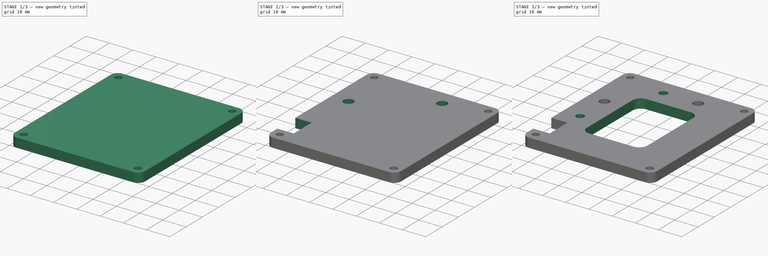
[diagram: build sequence overview — one tinted view per stage of 3, left to right]
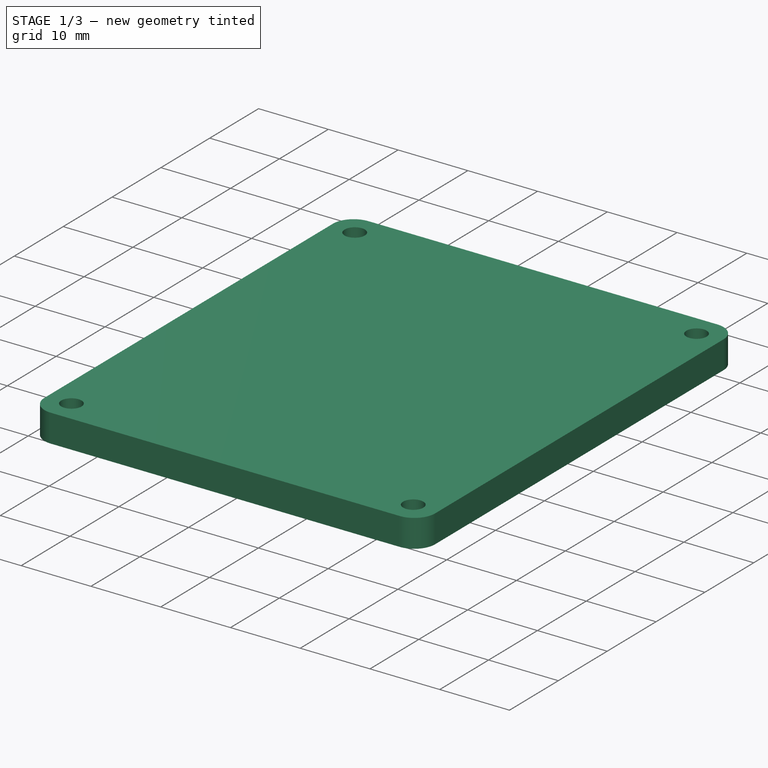
[diagram: stage 1 of 3 — iso view after this stage's code; geometry added in this stage tinted green]
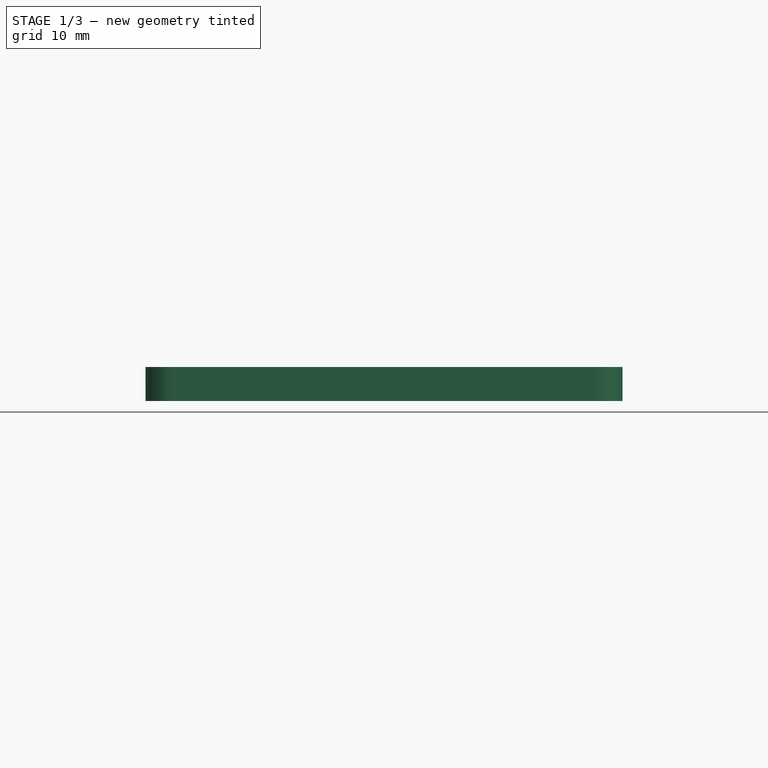
[diagram: stage 1 of 3 — front view after this stage's code; geometry added in this stage tinted green]
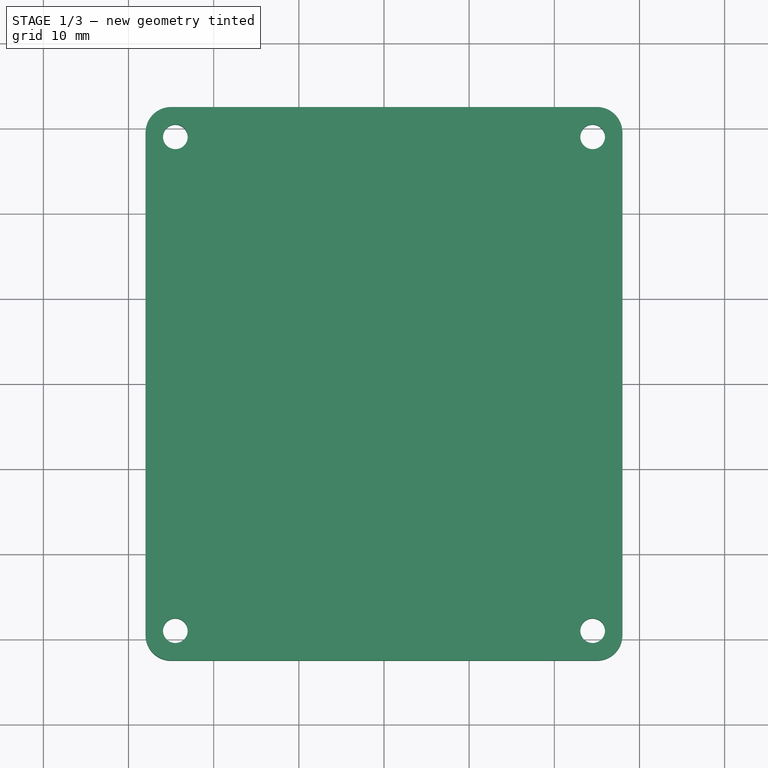
[diagram: stage 1 of 3 — top view after this stage's code; geometry added in this stage tinted green]
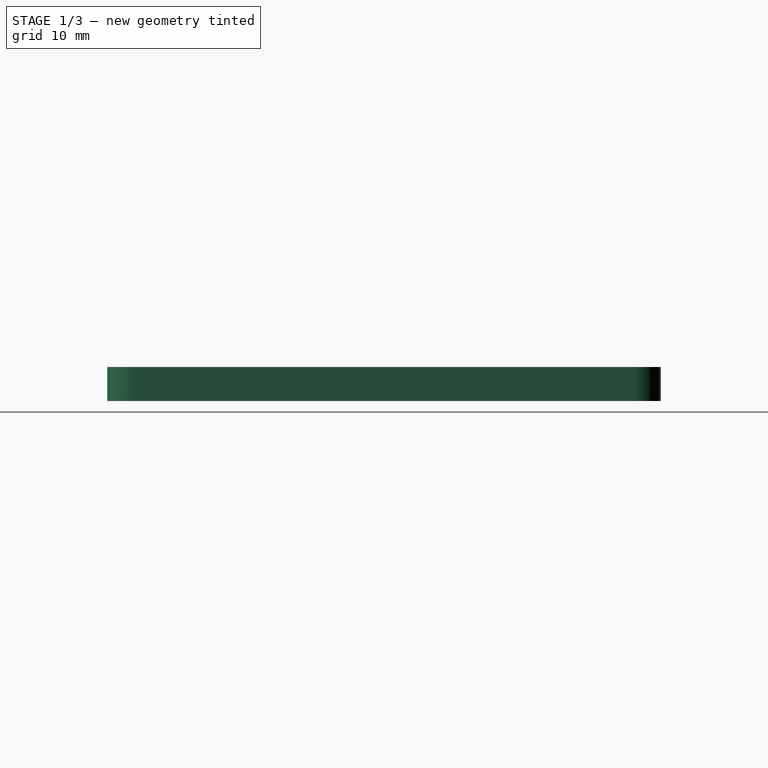
[diagram: stage 1 of 3 — right view after this stage's code; geometry added in this stage tinted green]
FCSTD DOCUMENT  (FreeCAD 0.19R)
Label: Hat_holder
License: All rights reserved
LicenseURL: http://en.wikipedia.org/wiki/All_rights_reserved
objects: Sketcher::SketchObject×6, PartDesign::Pocket×3, PartDesign::Hole×2, PartDesign::Pad×1, PartDesign::Body×1
note: 19 computed .brp shape members not serialized (recipe doc carries the construction recipe); baked Part::Feature solids carry a one-line shape summary decoded from their .brp

FEATURE [Sketcher::SketchObject] Sketch  label="base_sketch"
  FullyConstrained = true
  MapMode = 5
  Support = -> [XY_Plane]
  sketch-geometry (12):
    g0: LineSegment StartX=-25 StartY=-32.5 StartZ=0 EndX=25 EndY=-32.5 EndZ=0
    g1: LineSegment StartX=28 StartY=-29.5 StartZ=0 EndX=28 EndY=29.5 EndZ=0
    g2: LineSegment StartX=25 StartY=32.5 StartZ=0 EndX=-25 EndY=32.5 EndZ=0
    g3: LineSegment StartX=-28 StartY=29.5 StartZ=0 EndX=-28 EndY=-29.5 EndZ=0
    g4: ArcOfCircle CenterX=-25 CenterY=29.5 CenterZ=0 NormalX=0 NormalY=0 NormalZ=1 AngleXU=0 Radius=3 StartAngle=1.5708 EndAngle=3.14159
    g5: GeomPoint X=-28 Y=32.5 Z=0
    g6: ArcOfCircle CenterX=25 CenterY=29.5 CenterZ=0 NormalX=0 NormalY=0 NormalZ=1 AngleXU=0 Radius=3 StartAngle=0 EndAngle=1.5708
    g7: GeomPoint X=28 Y=32.5 Z=0
    g8: ArcOfCircle CenterX=25 CenterY=-29.5 CenterZ=0 NormalX=0 NormalY=0 NormalZ=1 AngleXU=0 Radius=3 StartAngle=4.71239 EndAngle=6.28319
    g9: GeomPoint X=28 Y=-32.5 Z=0
    g10: ArcOfCircle CenterX=-25 CenterY=-29.5 CenterZ=0 NormalX=0 NormalY=0 NormalZ=1 AngleXU=0 Radius=3 StartAngle=3.14159 EndAngle=4.71239
    g11: GeomPoint X=-28 Y=-32.5 Z=0
  constraints (27):
    c: Horizontal(g0)
    c: Horizontal(g2)
    c: Vertical(g1)
    c: Vertical(g3)
    c: Symmetric(g7,g11,g-1)
    c: DistanceY(g11,g5) = 65
    c: DistanceX(g5,g7) = 56
    c: PointOnObject(g5,g2)
    c: PointOnObject(g5,g3)
    c: Tangent(g2,g4) = -1.5708
    c: Tangent(g3,g4) = -1.5708
    c: Radius(g4) = 3
    c: PointOnObject(g7,g2)
    c: PointOnObject(g7,g1)
    c: Tangent(g2,g6) = -1.5708
    c: Tangent(g1,g6) = -1.5708
    c: PointOnObject(g9,g0)
    c: PointOnObject(g9,g1)
    c: Tangent(g0,g8) = -1.5708
    c: Tangent(g1,g8) = -1.5708
    c: PointOnObject(g11,g0)
    c: PointOnObject(g11,g3)
    c: Tangent(g0,g10) = -1.5708
    c: Tangent(g3,g10) = -1.5708
    c: Equal(g4,g10)
    c: Equal(g10,g8)
    c: Equal(g8,g6)
FEATURE [PartDesign::Pad] Pad  label="base"
  Direction = (1,1,1)
  Length = 4
  Length2 = 100
  Profile = -> Sketch
  Type = 0
FEATURE [Sketcher::SketchObject] Sketch001  label="M2-5_holes_sketch"
  ExternalGeometry = -> [Pad]
  FullyConstrained = true
  MapMode = 5
  Placement = pos=(0,0,4) rot=(0,0,1;0rad)
  Support = -> [Pad]
  sketch-geometry (4):
    g0: Circle CenterX=24.5 CenterY=-29 CenterZ=0 NormalX=0 NormalY=0 NormalZ=1 AngleXU=0 Radius=1.38
    g1: Circle CenterX=-24.5 CenterY=-29 CenterZ=0 NormalX=0 NormalY=0 NormalZ=1 AngleXU=0 Radius=1.38
    g2: Circle CenterX=-24.5 CenterY=29 CenterZ=0 NormalX=0 NormalY=0 NormalZ=1 AngleXU=0 Radius=1.38
    g3: Circle CenterX=24.5 CenterY=29 CenterZ=0 NormalX=0 NormalY=0 NormalZ=1 AngleXU=0 Radius=1.38
  constraints (12):
    c: Distance(g0,g-3) = 3.5
    c: Distance(g0,g-4) = 3.5
    c: Vertical(g2,g1)
    c: Horizontal(g2,g3)
    c: Vertical(g3,g0)
    c: Horizontal(g1,g0)
    c: DistanceX(g1,g0) = 49
    c: DistanceY(g1,g2) = 58
    c: Radius(g0) = 1.38
    c: Equal(g1,g0)
    c: Equal(g0,g3)
    c: Equal(g3,g2)
FEATURE [PartDesign::Hole] Hole  label="M2-5_holes"
  BaseFeature = -> Pad
  Depth = 25
  DepthType = 1
  Diameter = 2.9
  DrillForDepth = false
  DrillPoint = 1
  DrillPointAngle = 118
  HoleCutCountersinkAngle = 90
  HoleCutCustomValues = false
  HoleCutDepth = 0
  HoleCutDiameter = 6.1
  HoleCutType = 0
  ModelActualThread = false
  Profile = -> Sketch001
  Tapered = false
  TaperedAngle = 90
  ThreadAngle = 0
  ThreadClass = 0
  ThreadCutOffInner = 0
  ThreadCutOffOuter = 0
  ThreadDirection = 0
  ThreadFit = 0
  ThreadPitch = 0
  ThreadSize = 8
  ThreadType = 1
  Threaded = false
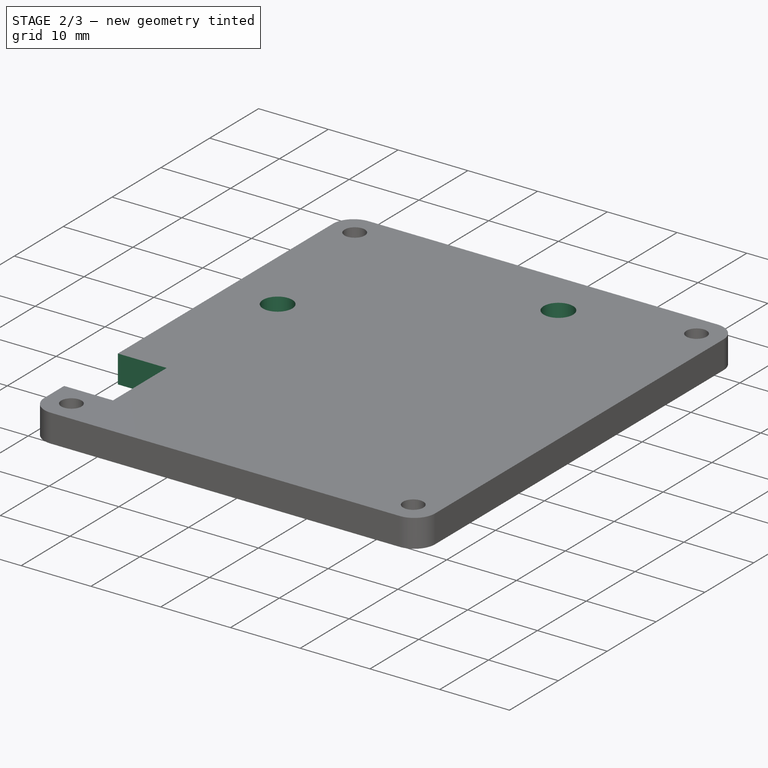
[diagram: stage 2 of 3 — iso view after this stage's code; geometry added in this stage tinted green]
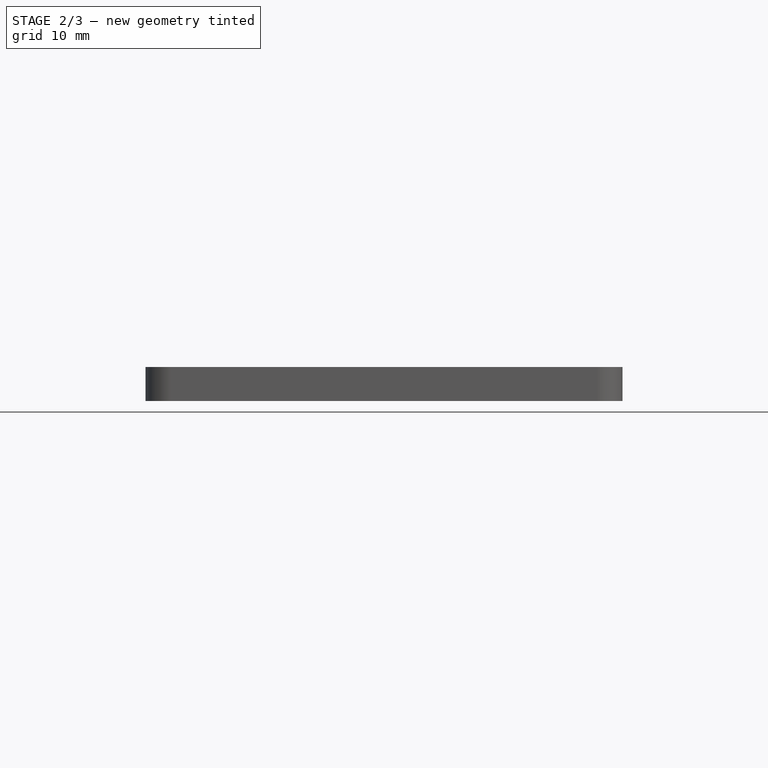
[diagram: stage 2 of 3 — front view after this stage's code; geometry added in this stage tinted green]
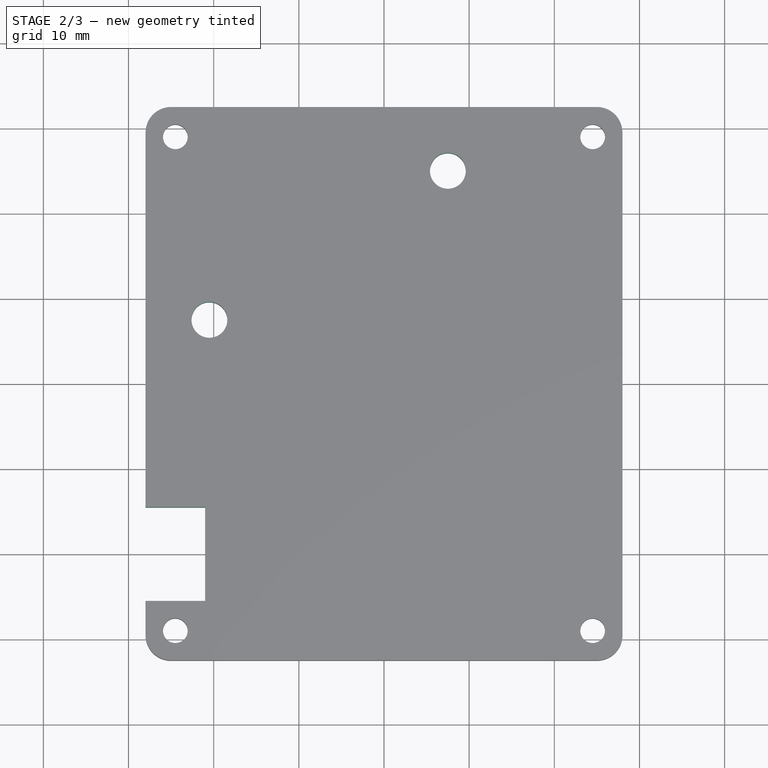
[diagram: stage 2 of 3 — top view after this stage's code; geometry added in this stage tinted green]
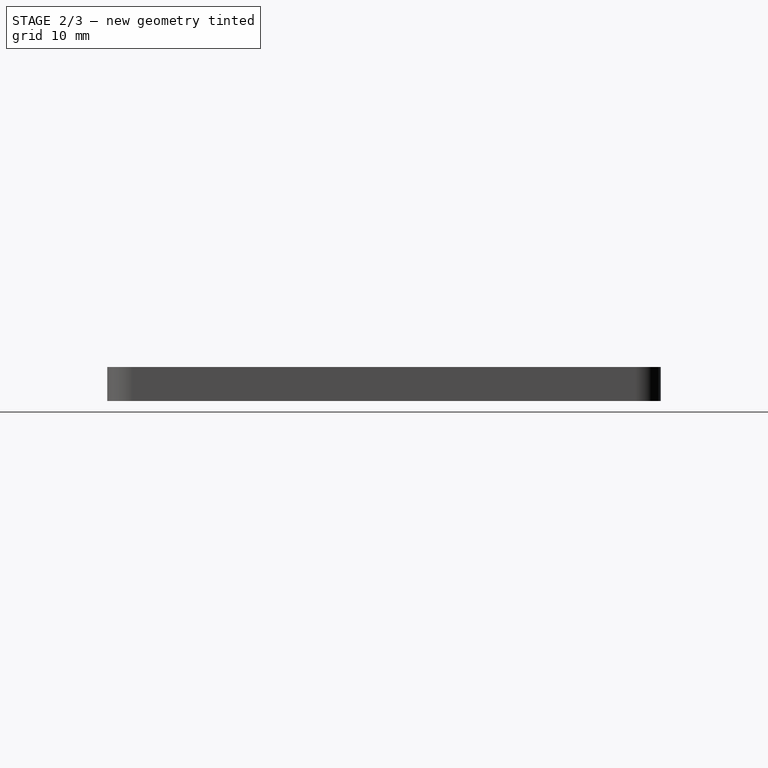
[diagram: stage 2 of 3 — right view after this stage's code; geometry added in this stage tinted green]
FEATURE [Sketcher::SketchObject] Sketch002  label="wire_hole_sketch"
  ExternalGeometry = -> [Hole]
  FullyConstrained = true
  MapMode = 5
  Placement = pos=(0,0,4) rot=(0,0,1;0rad)
  Support = -> [Hole]
  sketch-geometry (4):
    g0: LineSegment StartX=-28 StartY=-25.5 StartZ=0 EndX=-21 EndY=-25.5 EndZ=0
    g1: LineSegment StartX=-21 StartY=-25.5 StartZ=0 EndX=-21 EndY=-14.5 EndZ=0
    g2: LineSegment StartX=-21 StartY=-14.5 StartZ=0 EndX=-28 EndY=-14.5 EndZ=0
    g3: LineSegment StartX=-28 StartY=-14.5 StartZ=0 EndX=-28 EndY=-25.5 EndZ=0
  constraints (12):
    c: Coincident(g0,g1)
    c: Coincident(g1,g2)
    c: Coincident(g2,g3)
    c: Coincident(g3,g0)
    c: Horizontal(g0)
    c: Horizontal(g2)
    c: Vertical(g1)
    c: Vertical(g3)
    c: PointOnObject(g0,g-4)
    c: Distance(g2,g-3) = 18
    c: Distance(g-5,g0) = 3.5
    c: DistanceX(g2,g2) = 7
FEATURE [PartDesign::Pocket] Pocket  label="wire_hole"
  BaseFeature = -> Hole
  Length = 5
  Length2 = 100
  Profile = -> Sketch002
  Type = 1
FEATURE [Sketcher::SketchObject] Sketch003  label="dowel_holes_sketch"
  ExternalGeometry = -> [Pocket]
  FullyConstrained = true
  MapMode = 5
  Placement = pos=(0,0,4) rot=(0,0,1;0rad)
  Support = -> [Pocket]
  sketch-geometry (2):
    g0: Circle CenterX=7.5 CenterY=25 CenterZ=0 NormalX=0 NormalY=0 NormalZ=1 AngleXU=0 Radius=2.1
    g1: Circle CenterX=-20.5 CenterY=7.5 CenterZ=0 NormalX=0 NormalY=0 NormalZ=1 AngleXU=0 Radius=2.1
  constraints (6):
    c: Distance(g1,g-4) = 7.5
    c: Distance(g0,g-3) = 7.5
    c: Radius(g0) = 2.1
    c: Equal(g1,g0)
    c: Distance(g1,g-1) = 7.5
    c: DistanceX(g-1,g0) = 7.5
FEATURE [PartDesign::Pocket] Pocket001  label="dowel_holes"
  BaseFeature = -> Pocket
  Length = 5
  Length2 = 100
  Profile = -> Sketch003
  Type = 1
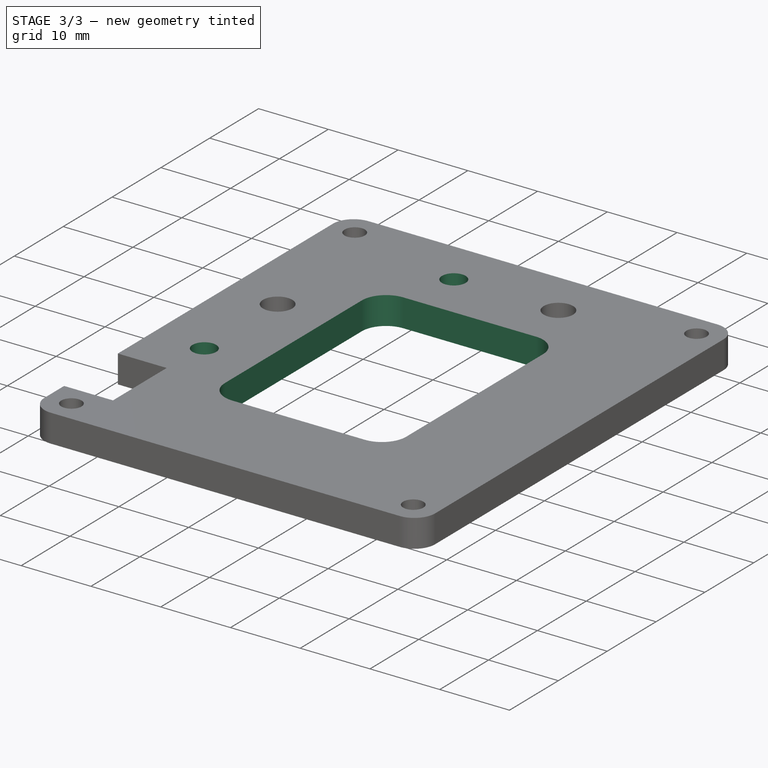
[diagram: stage 3 of 3 — iso view after this stage's code; geometry added in this stage tinted green]
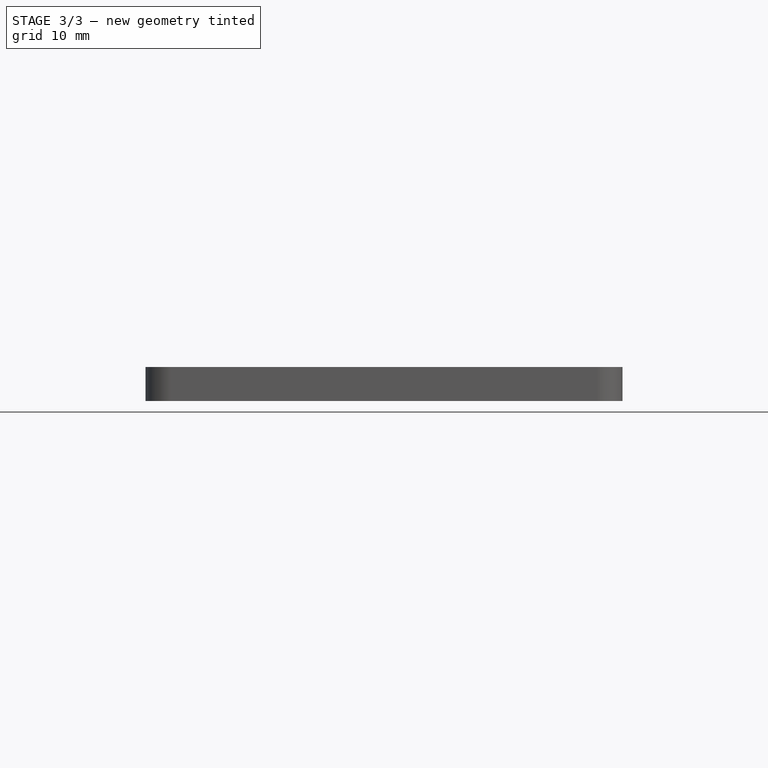
[diagram: stage 3 of 3 — front view after this stage's code; geometry added in this stage tinted green]
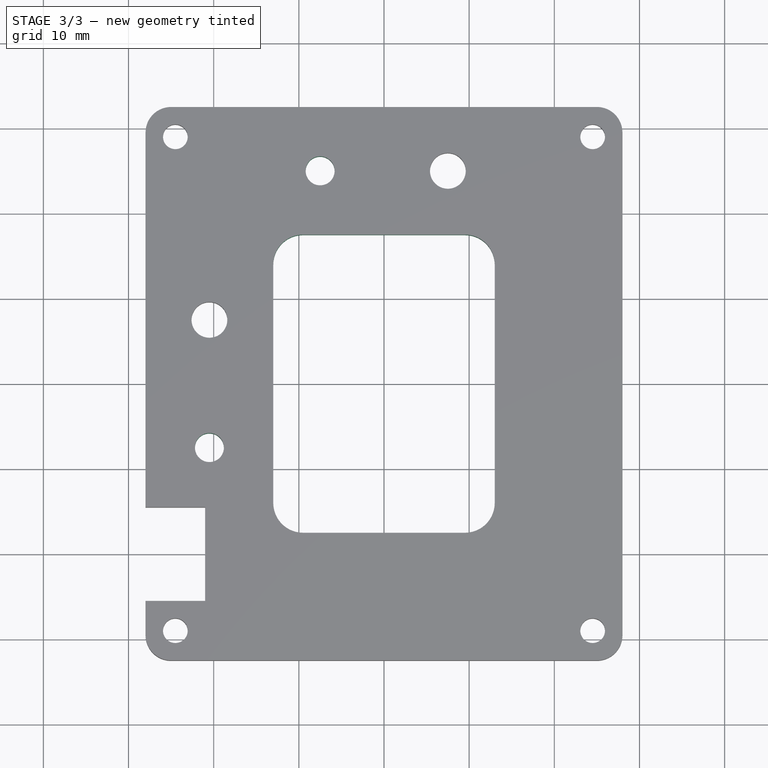
[diagram: stage 3 of 3 — top view after this stage's code; geometry added in this stage tinted green]
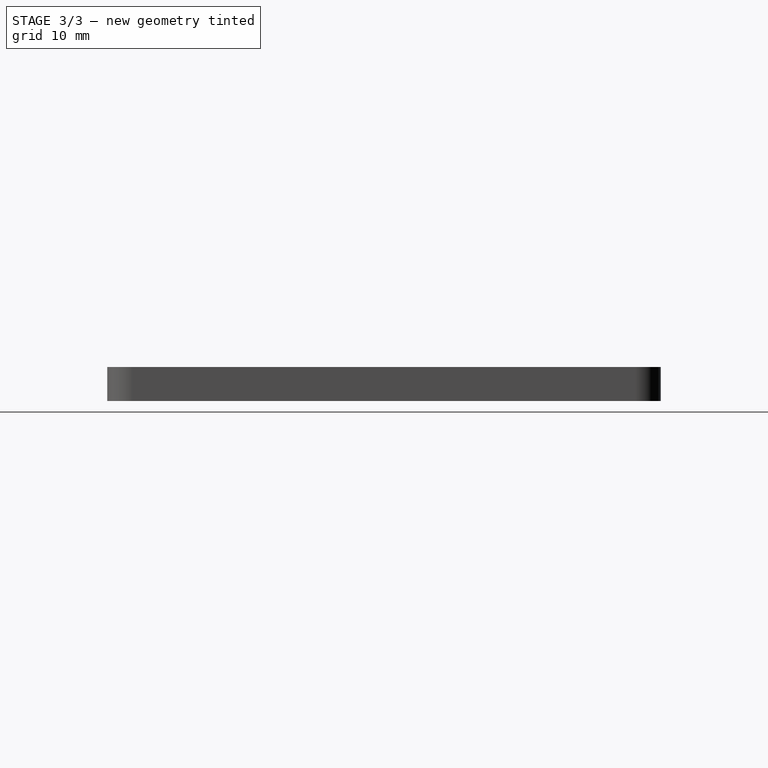
[diagram: stage 3 of 3 — right view after this stage's code; geometry added in this stage tinted green]
FEATURE [Sketcher::SketchObject] Sketch004  label="M3_clearances_sketch"
  ExternalGeometry = -> [Pocket001]
  FullyConstrained = true
  MapMode = 5
  Placement = pos=(0,0,4) rot=(0,0,1;0rad)
  Support = -> [Pocket001]
  sketch-geometry (2):
    g0: Circle CenterX=-20.5 CenterY=-7.5 CenterZ=0 NormalX=0 NormalY=0 NormalZ=1 AngleXU=0 Radius=1.7
    g1: Circle CenterX=-7.5 CenterY=25 CenterZ=0 NormalX=0 NormalY=0 NormalZ=1 AngleXU=0 Radius=1.7
  constraints (4):
    c: Radius(g0) = 1.7
    c: Symmetric(g-5,g0,g-1)
    c: Symmetric(g1,g-3,g-2)
    c: Equal(g0,g1)
FEATURE [PartDesign::Hole] Hole001  label="M3_clearances"
  BaseFeature = -> Pocket001
  Depth = 25
  DepthType = 1
  Diameter = 3.4
  DrillForDepth = false
  DrillPoint = 1
  DrillPointAngle = 118
  HoleCutCountersinkAngle = 90
  HoleCutCustomValues = false
  HoleCutDepth = 0
  HoleCutDiameter = 6.1
  HoleCutType = 0
  ModelActualThread = false
  Profile = -> Sketch004
  Tapered = false
  TaperedAngle = 90
  ThreadAngle = 0
  ThreadClass = 0
  ThreadCutOffInner = 0
  ThreadCutOffOuter = 0
  ThreadDirection = 0
  ThreadFit = 0
  ThreadPitch = 0
  ThreadSize = 9
  ThreadType = 1
  Threaded = false
FEATURE [Sketcher::SketchObject] Sketch005  label="lightening_hole_sketch"
  ExternalGeometry = -> [Hole001]
  FullyConstrained = true
  MapMode = 5
  Placement = pos=(0,0,4) rot=(0,0,1;0rad)
  Support = -> [Hole001]
  sketch-geometry (12):
    g0: LineSegment StartX=-9.5 StartY=17.5 StartZ=0 EndX=9.5 EndY=17.5 EndZ=0
    g1: LineSegment StartX=13 StartY=14 StartZ=0 EndX=13 EndY=-14 EndZ=0
    g2: LineSegment StartX=9.5 StartY=-17.5 StartZ=0 EndX=-9.5 EndY=-17.5 EndZ=0
    g3: LineSegment StartX=-13 StartY=-14 StartZ=0 EndX=-13 EndY=14 EndZ=0
    g4: ArcOfCircle CenterX=-9.5 CenterY=14 CenterZ=0 NormalX=0 NormalY=0 NormalZ=1 AngleXU=0 Radius=3.5 StartAngle=1.5708 EndAngle=3.14159
    g5: GeomPoint X=-13 Y=17.5 Z=0
    g6: ArcOfCircle CenterX=9.5 CenterY=14 CenterZ=0 NormalX=0 NormalY=0 NormalZ=1 AngleXU=0 Radius=3.5 StartAngle=0 EndAngle=1.5708
    g7: GeomPoint X=13 Y=17.5 Z=0
    g8: ArcOfCircle CenterX=9.5 CenterY=-14 CenterZ=0 NormalX=0 NormalY=0 NormalZ=1 AngleXU=0 Radius=3.5 StartAngle=4.71239 EndAngle=6.28319
    g9: GeomPoint X=13 Y=-17.5 Z=0
    g10: ArcOfCircle CenterX=-9.5 CenterY=-14 CenterZ=0 NormalX=0 NormalY=0 NormalZ=1 AngleXU=0 Radius=3.5 StartAngle=3.14159 EndAngle=4.71239
    g11: GeomPoint X=-13 Y=-17.5 Z=0
  constraints (27):
    c: Horizontal(g0)
    c: Horizontal(g2)
    c: Vertical(g1)
    c: Vertical(g3)
    c: Symmetric(g7,g11,g-1)
    c: Distance(g-4,g3) = 7.5
    c: Distance(g-3,g0) = 7.5
    c: PointOnObject(g5,g3)
    c: PointOnObject(g5,g0)
    c: Tangent(g3,g4) = 1.5708
    c: Tangent(g0,g4) = 1.5708
    c: PointOnObject(g7,g0)
    c: PointOnObject(g7,g1)
    c: Tangent(g0,g6) = 1.5708
    c: Tangent(g1,g6) = 1.5708
    c: PointOnObject(g9,g1)
    c: PointOnObject(g9,g2)
    c: Tangent(g1,g8) = 1.5708
    c: Tangent(g2,g8) = 1.5708
    c: PointOnObject(g11,g2)
    c: PointOnObject(g11,g3)
    c: Tangent(g2,g10) = 1.5708
    c: Tangent(g3,g10) = 1.5708
    c: Equal(g4,g6)
    c: Equal(g6,g8)
    c: Equal(g8,g10)
    c: Radius(g4) = 3.5
FEATURE [PartDesign::Pocket] Pocket002  label="lightning_hole_sketch"
  BaseFeature = -> Hole001
  Length = 5
  Length2 = 100
  Profile = -> Sketch005
  Type = 1
FEATURE [PartDesign::Body] Body  label="Hat_holder"
  Group = -> [Sketch,Pad,Sketch001,Hole,Sketch002,Pocket,Sketch003,Pocket001,Sketch004,Hole001,Sketch005,Pocket002]
  Origin = -> Origin
  Tip = -> Pocket002
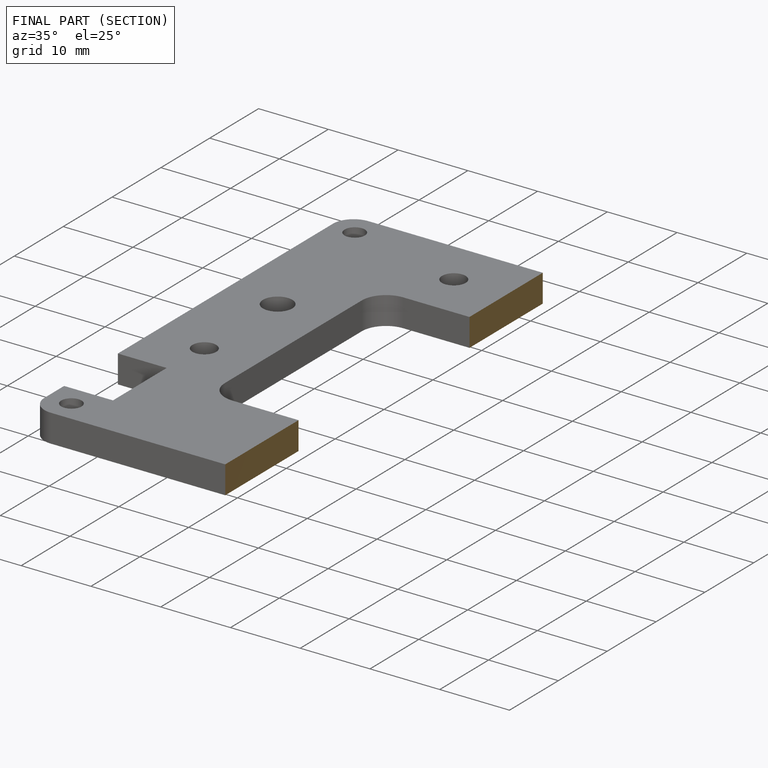
[diagram: finished part — half-section view (interior)]
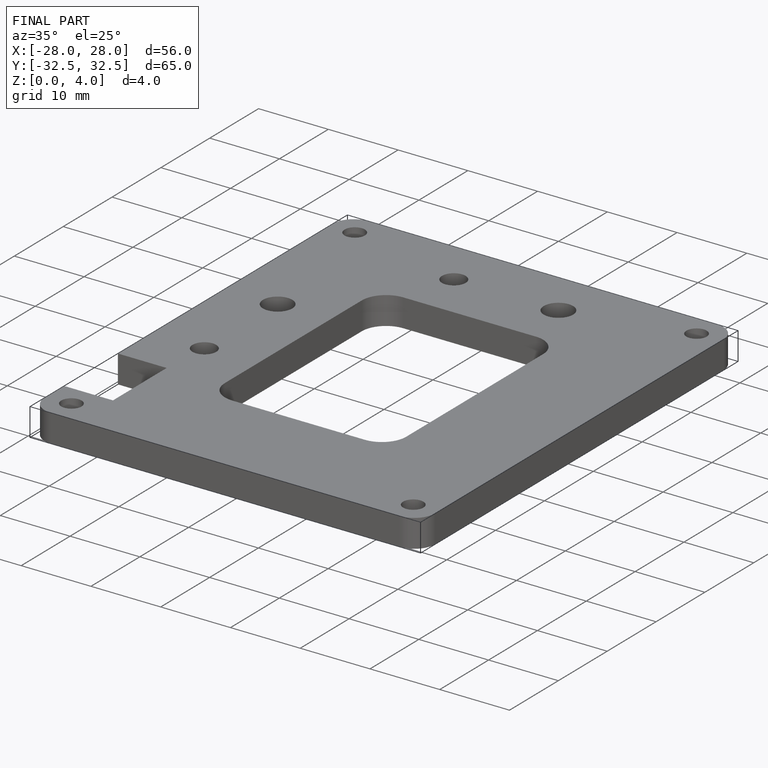
[diagram: finished part — iso view with bounding-box wireframe]
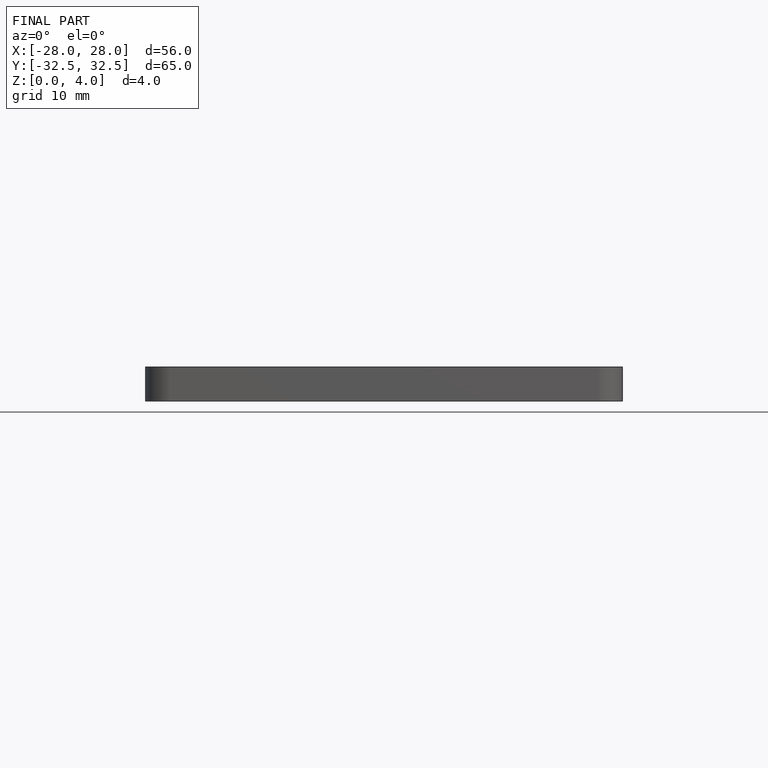
[diagram: finished part — front view with bounding-box wireframe]
